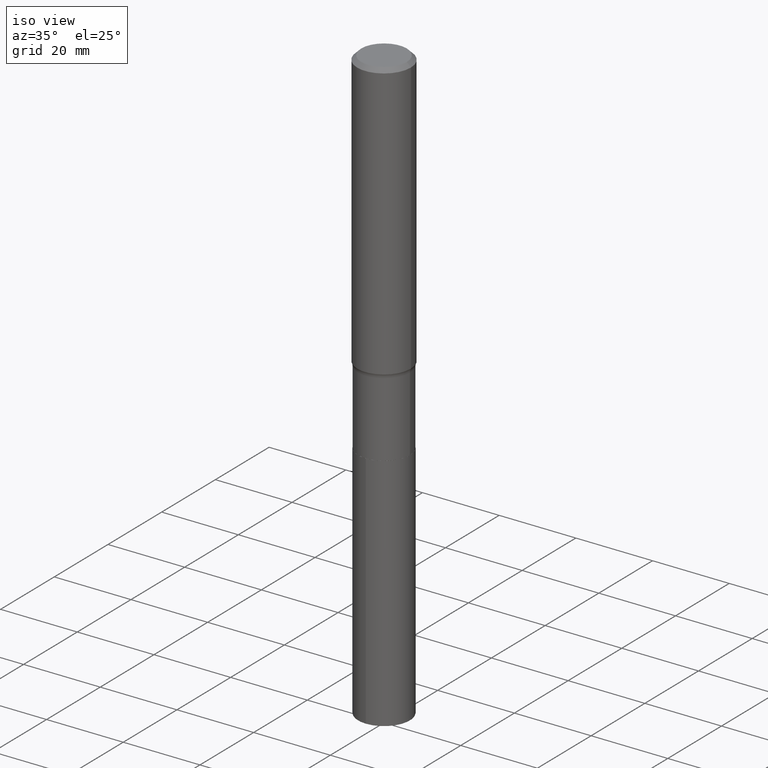
[diagram: clean part render]
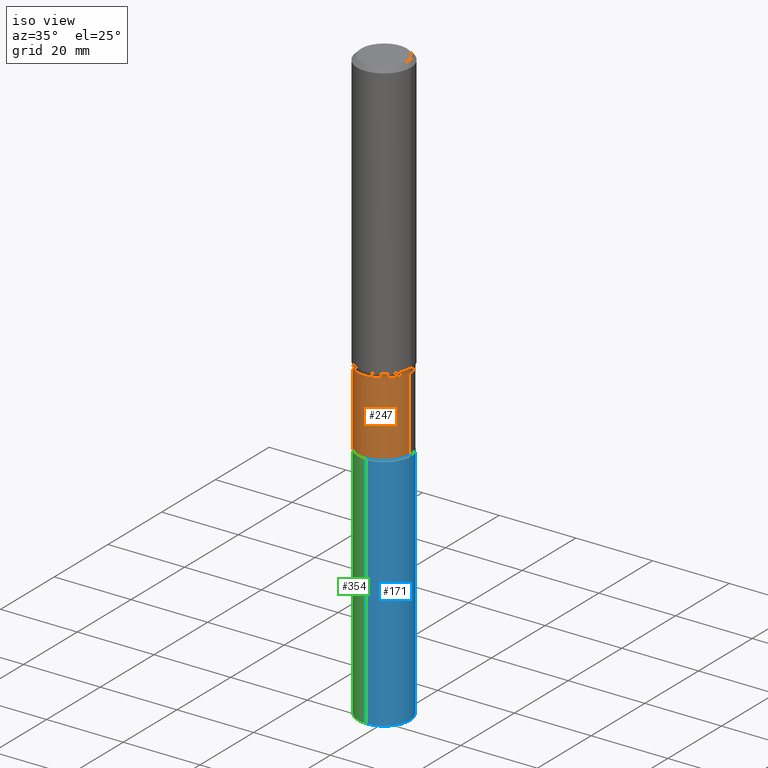
[diagram: same view with three faces highlighted in distinct colors, each labeled with its STEP entity id]
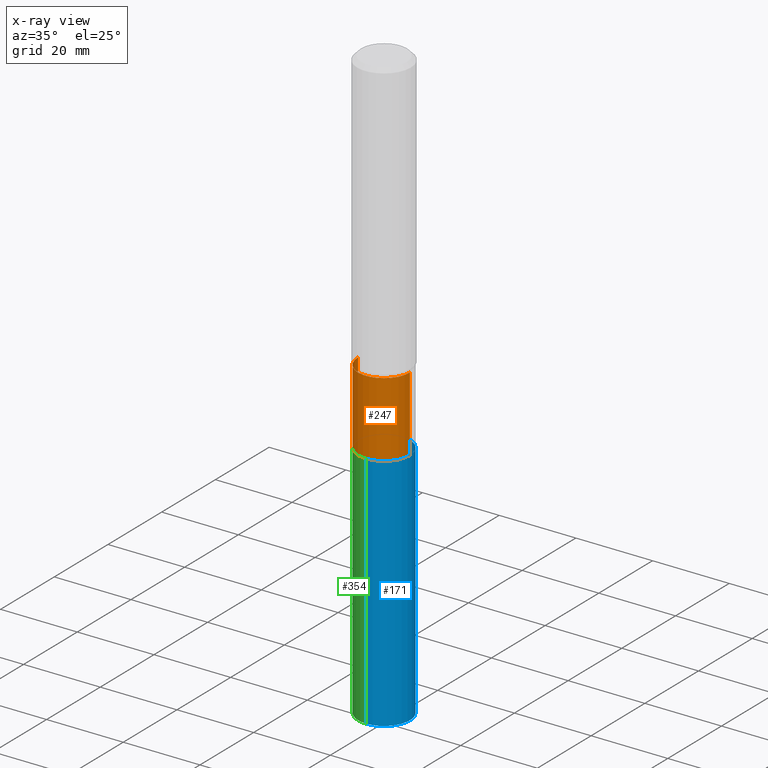
[diagram: x-ray of the same camera — body ghosted, the three highlighted faces saturated]
A machine part, iso view with three faces highlighted in distinct colors.
The next image is the same camera in x-ray (body ghosted, the three faces saturated) — at least one of them is partly hidden behind the body in this view.
Their STEP definitions:

[orange] entity #247 — the highlighted cylindrical surface (edge-blend (fillet) strip) has radius 6.7462 mm, axis along (-0, 0, 1).
#8 = CARTESIAN_POINT ( 'NONE',  ( 0.2655999999999999472, -1.854674887193472050E-15, 1.295112551651400461E-29 ) ) ;
#17 = CARTESIAN_POINT ( 'NONE',  ( 7.027543708334228001E-29, -1.003346992343354799E-14, -2.873699999999999921 ) ) ;
#24 = DIRECTION ( 'NONE',  ( -2.445468806185136597E-29, 3.491481338843145583E-15, 1.000000000000000000 ) ) ;
#79 = CARTESIAN_POINT ( 'NONE',  ( -0.2656000000000000028, -9.485600658834952659E-15, -3.640899999999999803 ) ) ;
#87 = DIRECTION ( 'NONE',  ( -2.445468806185136597E-29, 3.491481338843145583E-15, 1.000000000000000000 ) ) ;
#92 = CARTESIAN_POINT ( 'NONE',  ( 0.2656000000000000028, -1.456680929378748200E-14, -3.640899999999999803 ) ) ;
#130 = CARTESIAN_POINT ( 'NONE',  ( 0.000000000000000000, 0.000000000000000000, 0.000000000000000000 ) ) ;
#159 = DIRECTION ( 'NONE',  ( 1.000000000000000000, -6.982962677686266711E-15, 0.000000000000000000 ) ) ;
#169 = VECTOR ( 'NONE', #374, 39.37007874015748143 ) ;
#181 = VERTEX_POINT ( 'NONE', #92 ) ;
#197 = FACE_OUTER_BOUND ( 'NONE', #292, .T. ) ;
#201 = CIRCLE ( 'NONE', #279, 0.2656000000000000028 ) ;
#202 = CARTESIAN_POINT ( 'NONE',  ( 0.2655999999999998917, -1.188814481062701964E-14, -2.873699999999999921 ) ) ;
#214 = VERTEX_POINT ( 'NONE', #202 ) ;
#230 = CARTESIAN_POINT ( 'NONE',  ( -0.2655999999999999472, 1.887201506178825719E-15, -1.306469159971702786E-29 ) ) ;
#237 = DIRECTION ( 'NONE',  ( -2.445468806185136597E-29, 3.491481338843145583E-15, 1.000000000000000000 ) ) ;
#247 = ADVANCED_FACE ( 'NONE', ( #197 ), #281, .T. ) ;
#265 = ORIENTED_EDGE ( 'NONE', *, *, #440, .T. ) ;
#271 = LINE ( 'NONE', #230, #169 ) ;
#272 = AXIS2_PLACEMENT_3D ( 'NONE', #17, #24, #159 ) ;
#275 = CARTESIAN_POINT ( 'NONE',  ( -0.2655999999999998917, -9.485600658834952659E-15, -2.873699999999999921 ) ) ;
#278 = EDGE_CURVE ( 'NONE', #297, #214, #345, .T. ) ;
#279 = AXIS2_PLACEMENT_3D ( 'NONE', #417, #237, #380 ) ;
#281 = CYLINDRICAL_SURFACE ( 'NONE', #395, 0.2655999999999999472 ) ;
#292 = EDGE_LOOP ( 'NONE', ( #359, #265, #320, #324 ) ) ;
#297 = VERTEX_POINT ( 'NONE', #275 ) ;
#320 = ORIENTED_EDGE ( 'NONE', *, *, #378, .T. ) ;
#324 = ORIENTED_EDGE ( 'NONE', *, *, #278, .F. ) ;
#345 = CIRCLE ( 'NONE', #272, 0.2655999999999998917 ) ;
#358 = VECTOR ( 'NONE', #444, 39.37007874015748143 ) ;
#359 = ORIENTED_EDGE ( 'NONE', *, *, #415, .F. ) ;
#374 = DIRECTION ( 'NONE',  ( -2.445468806185136877E-29, 3.491481338843145188E-15, 1.000000000000000000 ) ) ;
#378 = EDGE_CURVE ( 'NONE', #181, #214, #447, .T. ) ;
#380 = DIRECTION ( 'NONE',  ( 1.000000000000000000, -6.982962677686263555E-15, 0.000000000000000000 ) ) ;
#395 = AXIS2_PLACEMENT_3D ( 'NONE', #130, #87, #419 ) ;
#396 = VERTEX_POINT ( 'NONE', #79 ) ;
#415 = EDGE_CURVE ( 'NONE', #396, #297, #271, .T. ) ;
#417 = CARTESIAN_POINT ( 'NONE',  ( 8.903707376439464300E-29, -1.271213440659400877E-14, -3.640899999999999803 ) ) ;
#419 = DIRECTION ( 'NONE',  ( 1.000000000000000000, -6.982962677686266711E-15, 4.876176775795936353E-29 ) ) ;
#440 = EDGE_CURVE ( 'NONE', #396, #181, #201, .T. ) ;
#444 = DIRECTION ( 'NONE',  ( -2.445468806185136877E-29, 3.491481338843145188E-15, 1.000000000000000000 ) ) ;
#447 = LINE ( 'NONE', #8, #358 ) ;

[blue] entity #171 — the highlighted cylindrical surface (edge-blend (fillet) strip) has radius 6.7462 mm, axis along (-0, 0, 1).
#6 = EDGE_CURVE ( 'NONE', #316, #137, #240, .T. ) ;
#10 = VERTEX_POINT ( 'NONE', #158 ) ;
#14 = CARTESIAN_POINT ( 'NONE',  ( 1.492223714302713929E-28, -2.130783589276710899E-14, -6.102400000000001157 ) ) ;
#21 = CARTESIAN_POINT ( 'NONE',  ( 8.904930110842557101E-29, -1.271388014726343106E-14, -3.641399999999999970 ) ) ;
#45 = AXIS2_PLACEMENT_3D ( 'NONE', #243, #384, #97 ) ;
#47 = VECTOR ( 'NONE', #375, 39.37007874015748143 ) ;
#97 = DIRECTION ( 'NONE',  ( -6.982962677686265133E-15, -1.000000000000000000, 4.114228906120878260E-15 ) ) ;
#110 = VECTOR ( 'NONE', #191, 39.37007874015748143 ) ;
#115 = DIRECTION ( 'NONE',  ( -6.982962677686265133E-15, -1.000000000000000000, 4.114228906120878260E-15 ) ) ;
#137 = VERTEX_POINT ( 'NONE', #295 ) ;
#143 = ORIENTED_EDGE ( 'NONE', *, *, #356, .T. ) ;
#145 = ORIENTED_EDGE ( 'NONE', *, *, #6, .T. ) ;
#150 = DIRECTION ( 'NONE',  ( -2.445065839977480244E-29, 3.492058409387921719E-15, 1.000000000000000000 ) ) ;
#155 = CARTESIAN_POINT ( 'NONE',  ( 1.887201506178914860E-15, 0.2655999999999872907, -3.641400000000001302 ) ) ;
#157 = CARTESIAN_POINT ( 'NONE',  ( 1.887201506178975602E-15, 0.2655999999999872907, -3.641400000000001302 ) ) ;
#158 = CARTESIAN_POINT ( 'NONE',  ( -1.854674887193383303E-15, -0.2656000000000127148, -3.641399999999999082 ) ) ;
#163 = CYLINDRICAL_SURFACE ( 'NONE', #45, 0.2656000000000000028 ) ;
#171 = ADVANCED_FACE ( 'NONE', ( #273 ), #163, .T. ) ;
#176 = AXIS2_PLACEMENT_3D ( 'NONE', #21, #410, #196 ) ;
#186 = EDGE_LOOP ( 'NONE', ( #145, #143, #257, #425 ) ) ;
#191 = DIRECTION ( 'NONE',  ( -2.445065839977480524E-29, 3.492058409387922113E-15, 1.000000000000000000 ) ) ;
#196 = DIRECTION ( 'NONE',  ( -6.982962677686265133E-15, -1.000000000000000000, 4.114228906120878260E-15 ) ) ;
#233 = CARTESIAN_POINT ( 'NONE',  ( -1.854674887193383303E-15, -0.2656000000000127148, -3.641399999999999082 ) ) ;
#234 = LINE ( 'NONE', #155, #110 ) ;
#239 = LINE ( 'NONE', #233, #47 ) ;
#240 = CIRCLE ( 'NONE', #372, 0.2656000000000000028 ) ;
#243 = CARTESIAN_POINT ( 'NONE',  ( 8.904930110842557101E-29, -1.271388014726343106E-14, -3.641399999999999970 ) ) ;
#257 = ORIENTED_EDGE ( 'NONE', *, *, #407, .F. ) ;
#261 = EDGE_CURVE ( 'NONE', #316, #10, #239, .T. ) ;
#273 = FACE_OUTER_BOUND ( 'NONE', #186, .T. ) ;
#289 = CARTESIAN_POINT ( 'NONE',  ( -1.854674887193322955E-15, -0.2656000000000213190, -6.102400000000000269 ) ) ;
#295 = CARTESIAN_POINT ( 'NONE',  ( 1.887201506178944837E-15, 0.2655999999999786865, -6.102400000000002045 ) ) ;
#316 = VERTEX_POINT ( 'NONE', #289 ) ;
#351 = CIRCLE ( 'NONE', #176, 0.2656000000000000028 ) ;
#356 = EDGE_CURVE ( 'NONE', #137, #443, #234, .T. ) ;
#372 = AXIS2_PLACEMENT_3D ( 'NONE', #14, #150, #115 ) ;
#375 = DIRECTION ( 'NONE',  ( -2.445065839977480524E-29, 3.492058409387922113E-15, 1.000000000000000000 ) ) ;
#384 = DIRECTION ( 'NONE',  ( -2.445065839977480244E-29, 3.492058409387921719E-15, 1.000000000000000000 ) ) ;
#407 = EDGE_CURVE ( 'NONE', #10, #443, #351, .T. ) ;
#410 = DIRECTION ( 'NONE',  ( -2.445065839977480244E-29, 3.492058409387921719E-15, 1.000000000000000000 ) ) ;
#425 = ORIENTED_EDGE ( 'NONE', *, *, #261, .F. ) ;
#443 = VERTEX_POINT ( 'NONE', #157 ) ;

[green] entity #354 — the highlighted cylindrical surface (edge-blend (fillet) strip) has radius 6.7462 mm, axis along (-0, 0, 1).
#5 = CARTESIAN_POINT ( 'NONE',  ( 1.492223714302713929E-28, -2.130783589276710899E-14, -6.102400000000001157 ) ) ;
#10 = VERTEX_POINT ( 'NONE', #158 ) ;
#38 = AXIS2_PLACEMENT_3D ( 'NONE', #405, #120, #296 ) ;
#47 = VECTOR ( 'NONE', #375, 39.37007874015748143 ) ;
#85 = DIRECTION ( 'NONE',  ( -6.982962677686265133E-15, -1.000000000000000000, 4.114228906120878260E-15 ) ) ;
#91 = CYLINDRICAL_SURFACE ( 'NONE', #140, 0.2656000000000000028 ) ;
#95 = CIRCLE ( 'NONE', #255, 0.2656000000000000028 ) ;
#105 = ORIENTED_EDGE ( 'NONE', *, *, #106, .T. ) ;
#106 = EDGE_CURVE ( 'NONE', #137, #316, #95, .T. ) ;
#110 = VECTOR ( 'NONE', #191, 39.37007874015748143 ) ;
#120 = DIRECTION ( 'NONE',  ( -2.445065839977480244E-29, 3.492058409387921719E-15, 1.000000000000000000 ) ) ;
#124 = CARTESIAN_POINT ( 'NONE',  ( 8.904930110842557101E-29, -1.271388014726343106E-14, -3.641399999999999970 ) ) ;
#127 = FACE_OUTER_BOUND ( 'NONE', #290, .T. ) ;
#137 = VERTEX_POINT ( 'NONE', #295 ) ;
#140 = AXIS2_PLACEMENT_3D ( 'NONE', #124, #274, #85 ) ;
#149 = CIRCLE ( 'NONE', #38, 0.2656000000000000028 ) ;
#155 = CARTESIAN_POINT ( 'NONE',  ( 1.887201506178914860E-15, 0.2655999999999872907, -3.641400000000001302 ) ) ;
#157 = CARTESIAN_POINT ( 'NONE',  ( 1.887201506178975602E-15, 0.2655999999999872907, -3.641400000000001302 ) ) ;
#158 = CARTESIAN_POINT ( 'NONE',  ( -1.854674887193383303E-15, -0.2656000000000127148, -3.641399999999999082 ) ) ;
#191 = DIRECTION ( 'NONE',  ( -2.445065839977480524E-29, 3.492058409387922113E-15, 1.000000000000000000 ) ) ;
#233 = CARTESIAN_POINT ( 'NONE',  ( -1.854674887193383303E-15, -0.2656000000000127148, -3.641399999999999082 ) ) ;
#234 = LINE ( 'NONE', #155, #110 ) ;
#239 = LINE ( 'NONE', #233, #47 ) ;
#252 = ORIENTED_EDGE ( 'NONE', *, *, #356, .F. ) ;
#255 = AXIS2_PLACEMENT_3D ( 'NONE', #5, #367, #303 ) ;
#261 = EDGE_CURVE ( 'NONE', #316, #10, #239, .T. ) ;
#274 = DIRECTION ( 'NONE',  ( -2.445065839977480244E-29, 3.492058409387921719E-15, 1.000000000000000000 ) ) ;
#285 = ORIENTED_EDGE ( 'NONE', *, *, #261, .T. ) ;
#289 = CARTESIAN_POINT ( 'NONE',  ( -1.854674887193322955E-15, -0.2656000000000213190, -6.102400000000000269 ) ) ;
#290 = EDGE_LOOP ( 'NONE', ( #252, #105, #285, #353 ) ) ;
#295 = CARTESIAN_POINT ( 'NONE',  ( 1.887201506178944837E-15, 0.2655999999999786865, -6.102400000000002045 ) ) ;
#296 = DIRECTION ( 'NONE',  ( -6.982962677686265133E-15, -1.000000000000000000, 4.114228906120878260E-15 ) ) ;
#303 = DIRECTION ( 'NONE',  ( -6.982962677686265133E-15, -1.000000000000000000, 4.114228906120878260E-15 ) ) ;
#316 = VERTEX_POINT ( 'NONE', #289 ) ;
#353 = ORIENTED_EDGE ( 'NONE', *, *, #446, .F. ) ;
#354 = ADVANCED_FACE ( 'NONE', ( #127 ), #91, .T. ) ;
#356 = EDGE_CURVE ( 'NONE', #137, #443, #234, .T. ) ;
#367 = DIRECTION ( 'NONE',  ( -2.445065839977480244E-29, 3.492058409387921719E-15, 1.000000000000000000 ) ) ;
#375 = DIRECTION ( 'NONE',  ( -2.445065839977480524E-29, 3.492058409387922113E-15, 1.000000000000000000 ) ) ;
#405 = CARTESIAN_POINT ( 'NONE',  ( 8.904930110842557101E-29, -1.271388014726343106E-14, -3.641399999999999970 ) ) ;
#443 = VERTEX_POINT ( 'NONE', #157 ) ;
#446 = EDGE_CURVE ( 'NONE', #443, #10, #149, .T. ) ;